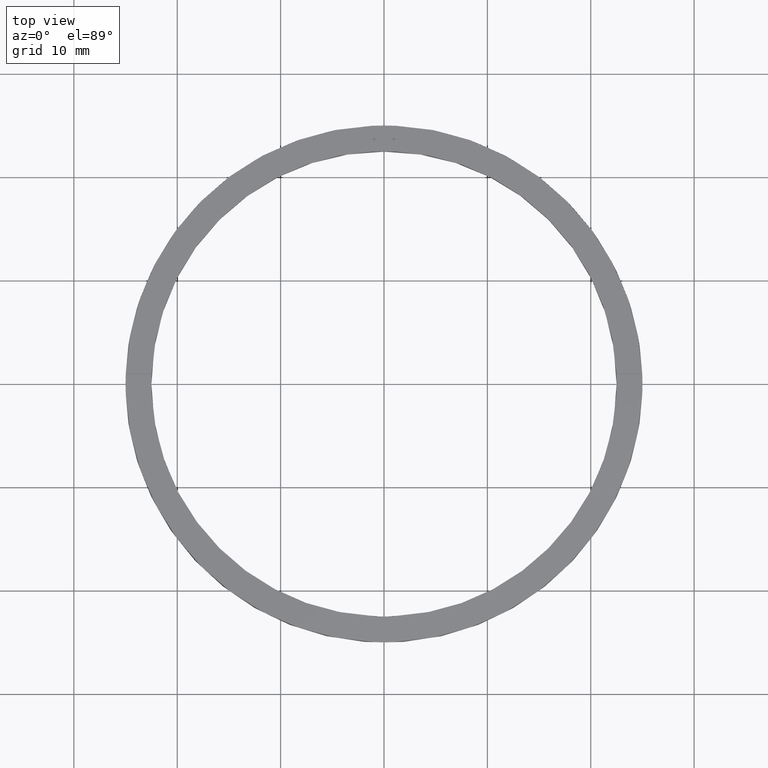
[diagram: clean part render]
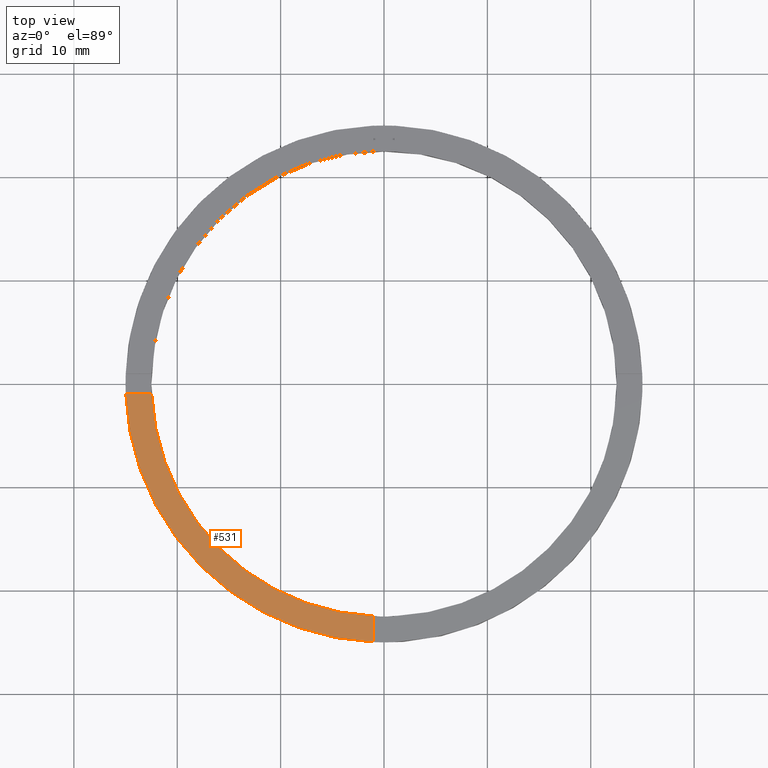
[diagram: same view with one face highlighted and labeled with its STEP entity id]
A machine part, top view. The second image highlights one B-rep face of the part: STEP entity #531.
In plain terms, the highlighted planar face has unit normal (0, 0, 1).
Its self-contained STEP definition (entity closure, byte-faithful):
#27 = CARTESIAN_POINT ( 'NONE',  ( 0.000000000000000000, 0.000000000000000000, 2.500000000000000000 ) ) ;
#50 = EDGE_LOOP ( 'NONE', ( #386, #485, #430, #413 ) ) ;
#65 = EDGE_CURVE ( 'NONE', #685, #372, #734, .T. ) ;
#131 = VECTOR ( 'NONE', #444, 1000.000000000000000 ) ;
#193 = DIRECTION ( 'NONE',  ( 0.000000000000000000, 0.000000000000000000, 1.000000000000000000 ) ) ;
#223 = VECTOR ( 'NONE', #596, 1000.000000000000000 ) ;
#262 = EDGE_CURVE ( 'NONE', #372, #384, #494, .T. ) ;
#286 = PLANE ( 'NONE',  #710 ) ;
#315 = DIRECTION ( 'NONE',  ( 1.000000000000000000, 0.000000000000000000, 0.000000000000000000 ) ) ;
#348 = CARTESIAN_POINT ( 'NONE',  ( -22.47776679298902636, -1.000000000000025535, 2.500000000000000000 ) ) ;
#363 = CARTESIAN_POINT ( 'NONE',  ( -15.00000000000018652, -1.000000000000024203, 2.500000000000000000 ) ) ;
#369 = EDGE_CURVE ( 'NONE', #423, #685, #696, .T. ) ;
#372 = VERTEX_POINT ( 'NONE', #613 ) ;
#374 = CARTESIAN_POINT ( 'NONE',  ( 0.000000000000000000, 0.000000000000000000, 2.500000000000000000 ) ) ;
#384 = VERTEX_POINT ( 'NONE', #529 ) ;
#386 = ORIENTED_EDGE ( 'NONE', *, *, #262, .F. ) ;
#395 = FACE_OUTER_BOUND ( 'NONE', #50, .T. ) ;
#413 = ORIENTED_EDGE ( 'NONE', *, *, #765, .T. ) ;
#423 = VERTEX_POINT ( 'NONE', #780 ) ;
#430 = ORIENTED_EDGE ( 'NONE', *, *, #369, .F. ) ;
#444 = DIRECTION ( 'NONE',  ( 1.000000000000000000, 1.734723475976807341E-16, -0.000000000000000000 ) ) ;
#474 = AXIS2_PLACEMENT_3D ( 'NONE', #567, #193, #315 ) ;
#485 = ORIENTED_EDGE ( 'NONE', *, *, #65, .F. ) ;
#494 = LINE ( 'NONE', #589, #223 ) ;
#529 = CARTESIAN_POINT ( 'NONE',  ( -1.000000000000160538, -24.97999199359358968, 2.500000000000000000 ) ) ;
#531 = ADVANCED_FACE ( 'NONE', ( #395 ), #286, .T. ) ;
#532 = DIRECTION ( 'NONE',  ( 0.000000000000000000, 0.000000000000000000, 1.000000000000000000 ) ) ;
#557 = DIRECTION ( 'NONE',  ( 0.000000000000000000, 0.000000000000000000, 1.000000000000000000 ) ) ;
#567 = CARTESIAN_POINT ( 'NONE',  ( 0.000000000000000000, 0.000000000000000000, 2.500000000000000000 ) ) ;
#583 = DIRECTION ( 'NONE',  ( 1.000000000000000000, 0.000000000000000000, -0.000000000000000000 ) ) ;
#589 = CARTESIAN_POINT ( 'NONE',  ( -1.000000000000161871, -15.00000000000018119, 2.500000000000000000 ) ) ;
#596 = DIRECTION ( 'NONE',  ( 1.301042606982605321E-16, -1.000000000000000000, 0.000000000000000000 ) ) ;
#598 = AXIS2_PLACEMENT_3D ( 'NONE', #27, #557, #631 ) ;
#613 = CARTESIAN_POINT ( 'NONE',  ( -1.000000000000160982, -22.47776679298901925, 2.500000000000000000 ) ) ;
#631 = DIRECTION ( 'NONE',  ( 1.000000000000000000, 0.000000000000000000, 0.000000000000000000 ) ) ;
#685 = VERTEX_POINT ( 'NONE', #348 ) ;
#696 = LINE ( 'NONE', #363, #131 ) ;
#710 = AXIS2_PLACEMENT_3D ( 'NONE', #374, #532, #583 ) ;
#734 = CIRCLE ( 'NONE', #598, 22.50000000000000355 ) ;
#739 = CIRCLE ( 'NONE', #474, 25.00000000000000000 ) ;
#765 = EDGE_CURVE ( 'NONE', #423, #384, #739, .T. ) ;
#780 = CARTESIAN_POINT ( 'NONE',  ( -24.97999199359359679, -1.000000000000025979, 2.500000000000000000 ) ) ;